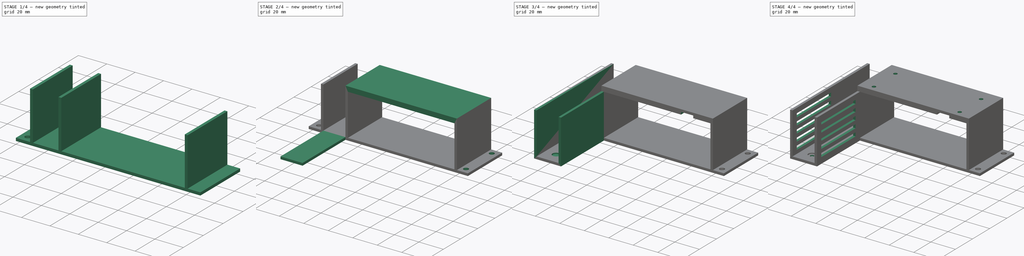
[diagram: build sequence overview — one tinted view per stage of 4, left to right]
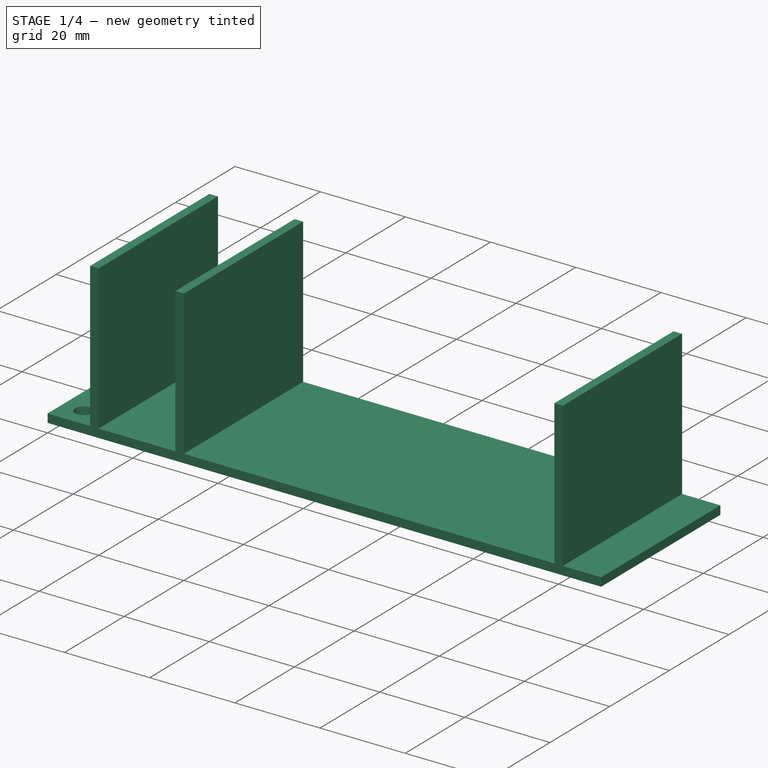
[diagram: stage 1 of 4 — iso view after this stage's code; geometry added in this stage tinted green]
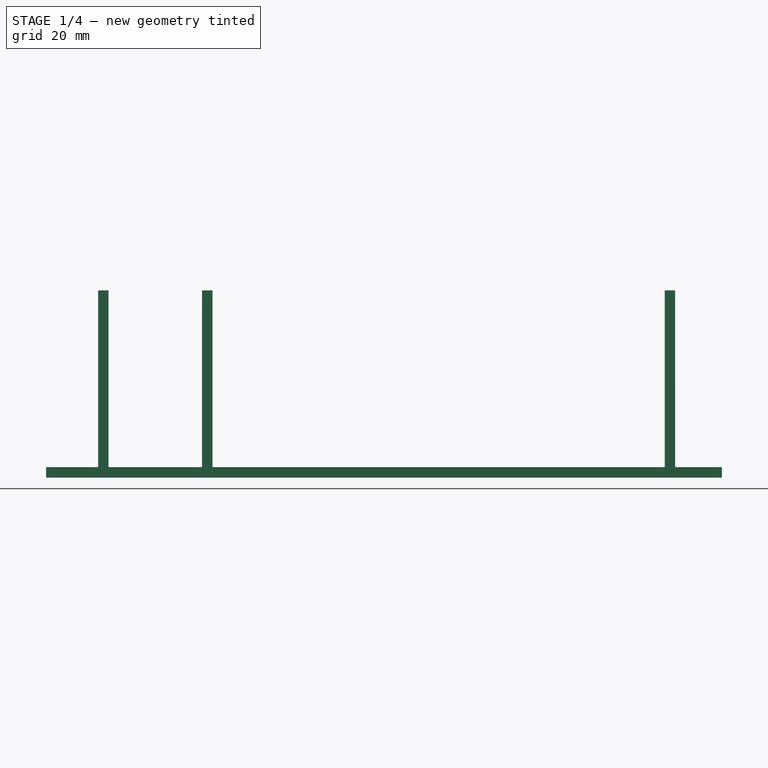
[diagram: stage 1 of 4 — front view after this stage's code; geometry added in this stage tinted green]
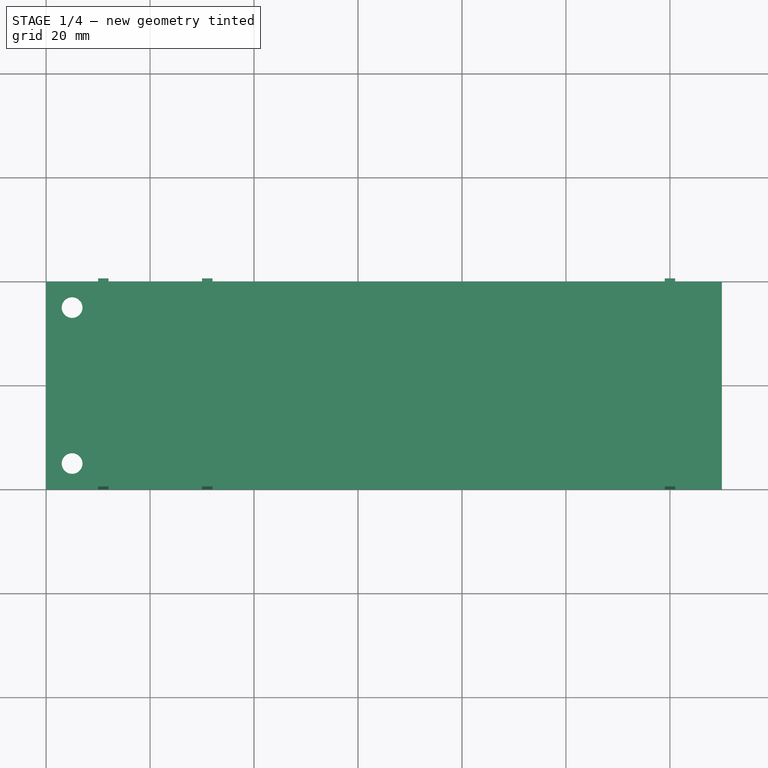
[diagram: stage 1 of 4 — top view after this stage's code; geometry added in this stage tinted green]
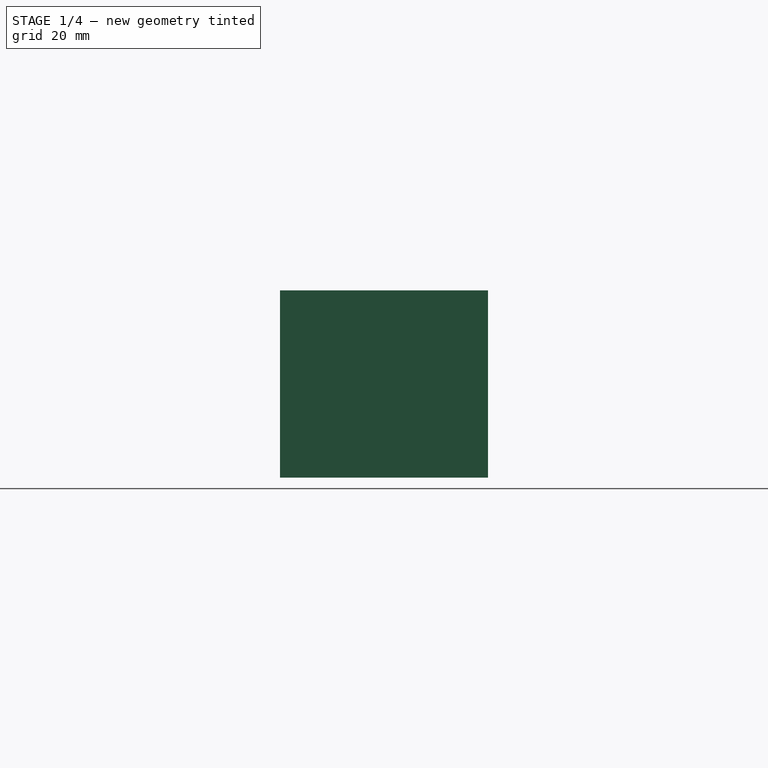
[diagram: stage 1 of 4 — right view after this stage's code; geometry added in this stage tinted green]
FCSTD DOCUMENT  (FreeCAD 0.16R6706 (Git))
Label: iROB-EA_SoporteBateriaPC
License: All rights reserved
LicenseURL: http://en.wikipedia.org/wiki/All_rights_reserved
objects: Sketcher::SketchObject×13, PartDesign::Pocket×7, PartDesign::Pad×6
note: 39 computed .brp shape members not serialized (recipe doc carries the construction recipe); baked Part::Feature solids carry a one-line shape summary decoded from their .brp

FEATURE [Sketcher::SketchObject] Sketch  label="Base"
  sketch-geometry (4):
    g0: LineSegment StartX=0 StartY=40 StartZ=0 EndX=130 EndY=40 EndZ=0
    g1: LineSegment StartX=130 StartY=40 StartZ=0 EndX=130 EndY=0 EndZ=0
    g2: LineSegment StartX=130 StartY=0 StartZ=0 EndX=0 EndY=0 EndZ=0
    g3: LineSegment StartX=0 StartY=0 StartZ=0 EndX=0 EndY=40 EndZ=0
  constraints (11):
    c: Coincident(g0,g1)
    c: Coincident(g1,g2)
    c: Coincident(g2,g3)
    c: Coincident(g3,g0)
    c: Horizontal(g0)
    c: Horizontal(g2)
    c: Vertical(g1)
    c: Vertical(g3)
    c: DistanceY(g3,g3) = 40
    c: DistanceX(g0,g0) = 130
    c: Coincident(g-1,g2)
FEATURE [PartDesign::Pad] Pad
  Length = 2
  Length2 = 100
  Sketch = -> Sketch
  Type = 0
FEATURE [Sketcher::SketchObject] Sketch001  label="Laterales"
  Placement = pos=(0,0,2) rot=(0,0,1;0rad)
  Support = -> Pad [Face6]
  sketch-geometry (12):
    g0: LineSegment StartX=10 StartY=40 StartZ=0 EndX=12 EndY=40 EndZ=0
    g1: LineSegment StartX=12 StartY=40 StartZ=0 EndX=12 EndY=0 EndZ=0
    g2: LineSegment StartX=12 StartY=0 StartZ=0 EndX=10 EndY=0 EndZ=0
    g3: LineSegment StartX=10 StartY=0 StartZ=0 EndX=10 EndY=40 EndZ=0
    g4: LineSegment StartX=32 StartY=40 StartZ=0 EndX=30 EndY=40 EndZ=0
    g5: LineSegment StartX=30 StartY=40 StartZ=0 EndX=30 EndY=0 EndZ=0
    g6: LineSegment StartX=30 StartY=0 StartZ=0 EndX=32 EndY=0 EndZ=0
    g7: LineSegment StartX=32 StartY=0 StartZ=0 EndX=32 EndY=40 EndZ=0
    g8: LineSegment StartX=121 StartY=40 StartZ=0 EndX=119 EndY=40 EndZ=0
    g9: LineSegment StartX=119 StartY=40 StartZ=0 EndX=119 EndY=0 EndZ=0
    g10: LineSegment StartX=119 StartY=0 StartZ=0 EndX=121 EndY=0 EndZ=0
    g11: LineSegment StartX=121 StartY=0 StartZ=0 EndX=121 EndY=40 EndZ=0
  constraints (33):
    c: Coincident(g0,g1)
    c: Coincident(g1,g2)
    c: Coincident(g2,g3)
    c: Coincident(g3,g0)
    c: Horizontal(g0)
    c: Horizontal(g2)
    c: Vertical(g1)
    c: Vertical(g3)
    c: DistanceX(g0,g0) = 2
    c: DistanceY(g1,g1) = 40
    c: DistanceX(g2,g-1) = -10
    c: Coincident(g4,g5)
    c: Coincident(g5,g6)
    c: Coincident(g6,g7)
    c: Coincident(g7,g4)
    c: Horizontal(g4)
    c: Horizontal(g6)
    c: Vertical(g5)
    c: Vertical(g7)
    c: DistanceX(g4,g4) = 2
    c: DistanceY(g7,g7) = 40
    c: DistanceX(g5,g1) = -18
    c: Coincident(g8,g9)
    c: Coincident(g9,g10)
    c: Coincident(g10,g11)
    c: Coincident(g11,g8)
    c: Horizontal(g8)
    c: Horizontal(g10)
    c: Vertical(g9)
    c: Vertical(g11)
    c: DistanceX(g8,g8) = 2
    c: DistanceY(g11,g11) = 40
    c: DistanceX(g9,g6) = -87
FEATURE [PartDesign::Pad] Pad001
  Length = 34
  Length2 = 100
  Sketch = -> Sketch001
  Type = 0
FEATURE [Sketcher::SketchObject] Sketch002  label="Tornillos_Base_Lado_A"
  Placement = pos=(0,0,2) rot=(0,0,1;0rad)
  Support = -> Pad001 [Face9]
  sketch-geometry (2):
    g0: Circle CenterX=5 CenterY=5 CenterZ=0 NormalX=0 NormalY=0 NormalZ=1 Radius=2
    g1: Circle CenterX=5 CenterY=35 CenterZ=0 NormalX=0 NormalY=0 NormalZ=1 Radius=2
  constraints (5):
    c: Radius(g0) = 2
    c: DistanceY(g-1,g0) = 5
    c: DistanceX(g0,g-1) = -5
    c: Radius(g1) = 2
    c: DistanceY(g0,g1) = 30
FEATURE [PartDesign::Pocket] Pocket
  Length = 2
  Sketch = -> Sketch002
  Type = 0
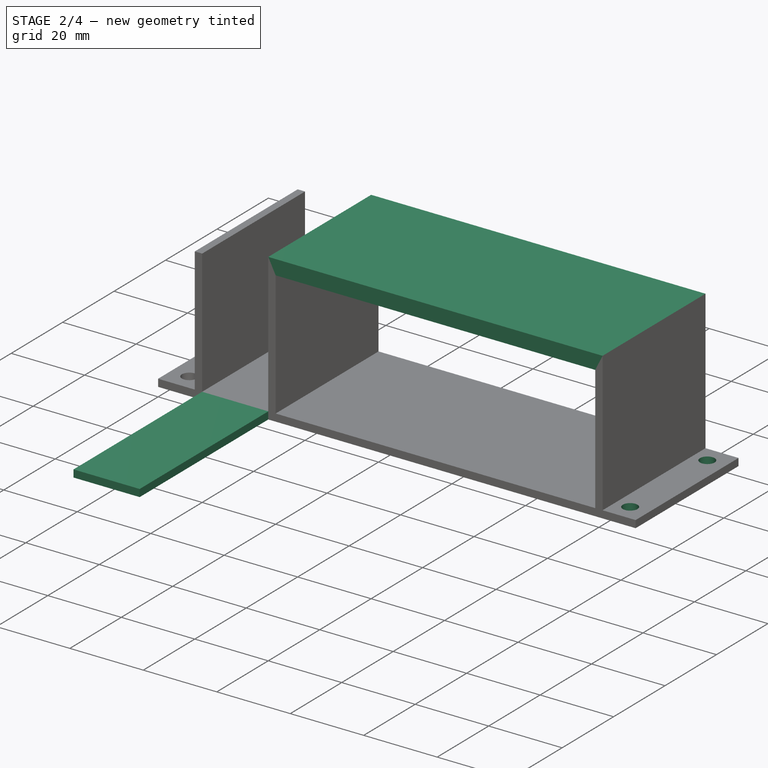
[diagram: stage 2 of 4 — iso view after this stage's code; geometry added in this stage tinted green]
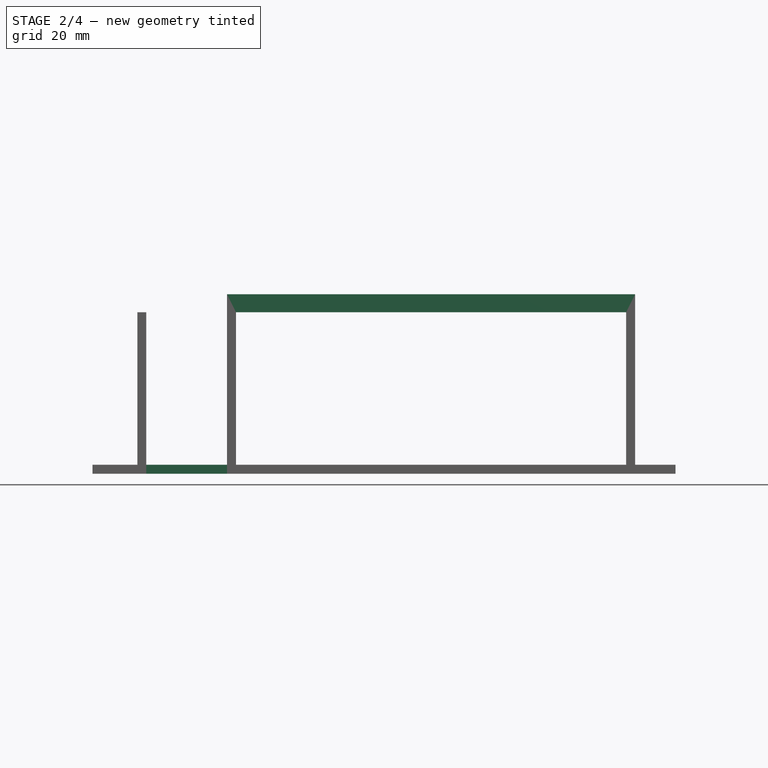
[diagram: stage 2 of 4 — front view after this stage's code; geometry added in this stage tinted green]
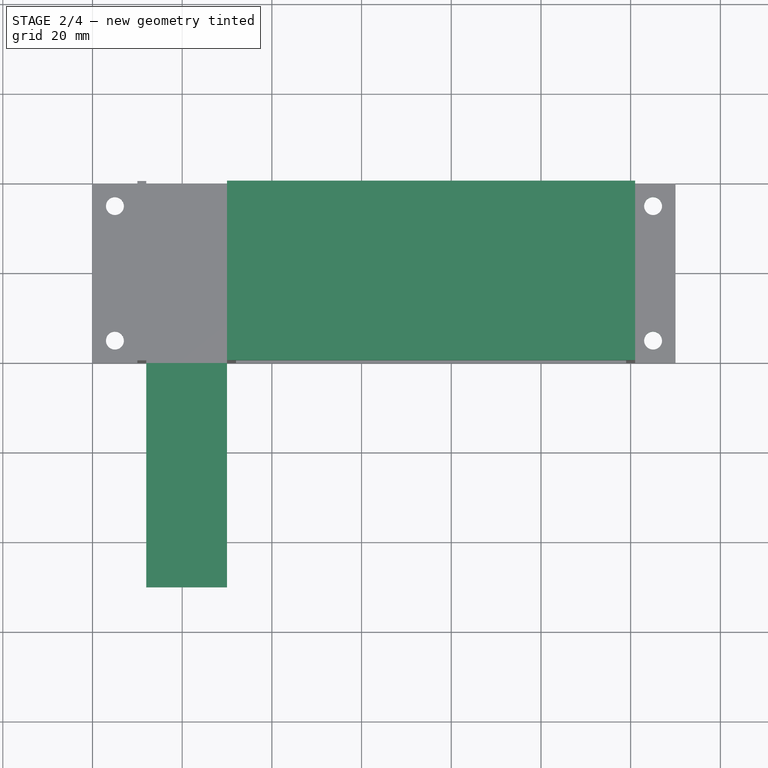
[diagram: stage 2 of 4 — top view after this stage's code; geometry added in this stage tinted green]
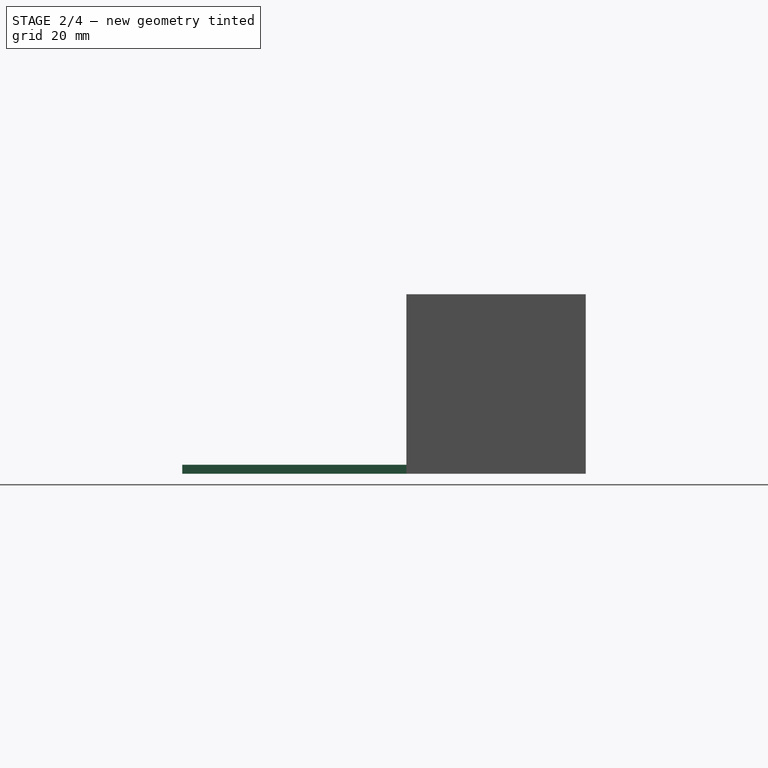
[diagram: stage 2 of 4 — right view after this stage's code; geometry added in this stage tinted green]
FEATURE [Sketcher::SketchObject] Sketch003  label="Tornillos_Base_Lado_B"
  Placement = pos=(0,0,2) rot=(0,0,1;0rad)
  Support = -> Pocket [Face16]
  sketch-geometry (2):
    g0: Circle CenterX=125 CenterY=5 CenterZ=0 NormalX=0 NormalY=0 NormalZ=1 Radius=2
    g1: Circle CenterX=125 CenterY=35 CenterZ=0 NormalX=0 NormalY=0 NormalZ=1 Radius=2
  constraints (5):
    c: Radius(g0) = 2
    c: DistanceX(g0,g-1) = -125
    c: DistanceY(g-1,g0) = 5
    c: Radius(g1) = 2
    c: DistanceY(g0,g1) = 30
FEATURE [PartDesign::Pocket] Pocket001
  Length = 2
  Sketch = -> Sketch003
  Type = 0
FEATURE [Sketcher::SketchObject] Sketch004  label="Tapa_Superior"
  Placement = pos=(0,0,36) rot=(0,0,1;0rad)
  Support = -> Pocket001 [Face10]
  sketch-geometry (4):
    g0: LineSegment StartX=30 StartY=40 StartZ=0 EndX=121 EndY=40 EndZ=0
    g1: LineSegment StartX=121 StartY=40 StartZ=0 EndX=121 EndY=0 EndZ=0
    g2: LineSegment StartX=121 StartY=0 StartZ=0 EndX=30 EndY=0 EndZ=0
    g3: LineSegment StartX=30 StartY=0 StartZ=0 EndX=30 EndY=40 EndZ=0
  constraints (11):
    c: Coincident(g0,g1)
    c: Coincident(g1,g2)
    c: Coincident(g2,g3)
    c: Coincident(g3,g0)
    c: Horizontal(g0)
    c: Horizontal(g2)
    c: Vertical(g1)
    c: Vertical(g3)
    c: DistanceY(g3,g3) = 40
    c: DistanceX(g0,g0) = 91
    c: DistanceX(g-1,g2) = 30
FEATURE [PartDesign::Pad] Pad002
  Length = 4
  Length2 = 100
  Sketch = -> Sketch004
  Type = 0
FEATURE [Sketcher::SketchObject] Sketch005  label="Base_PC"
  Placement = pos=(0,0,0) rot=(1,0,0;1.5708rad)
  Support = -> Pad002 [Face21]
  sketch-geometry (4):
    g0: LineSegment StartX=12 StartY=2 StartZ=0 EndX=30 EndY=2 EndZ=0
    g1: LineSegment StartX=30 StartY=2 StartZ=0 EndX=30 EndY=0 EndZ=0
    g2: LineSegment StartX=30 StartY=0 StartZ=0 EndX=12 EndY=0 EndZ=0
    g3: LineSegment StartX=12 StartY=0 StartZ=0 EndX=12 EndY=2 EndZ=0
  constraints (11):
    c: Coincident(g0,g1)
    c: Coincident(g1,g2)
    c: Coincident(g2,g3)
    c: Coincident(g3,g0)
    c: Horizontal(g0)
    c: Horizontal(g2)
    c: Vertical(g1)
    c: Vertical(g3)
    c: DistanceY(g1,g1) = 2
    c: DistanceX(g0,g0) = 18
    c: DistanceX(g2,g-1) = -12
FEATURE [PartDesign::Pad] Pad003
  Length = 50
  Length2 = 100
  Sketch = -> Sketch005
  Type = 0
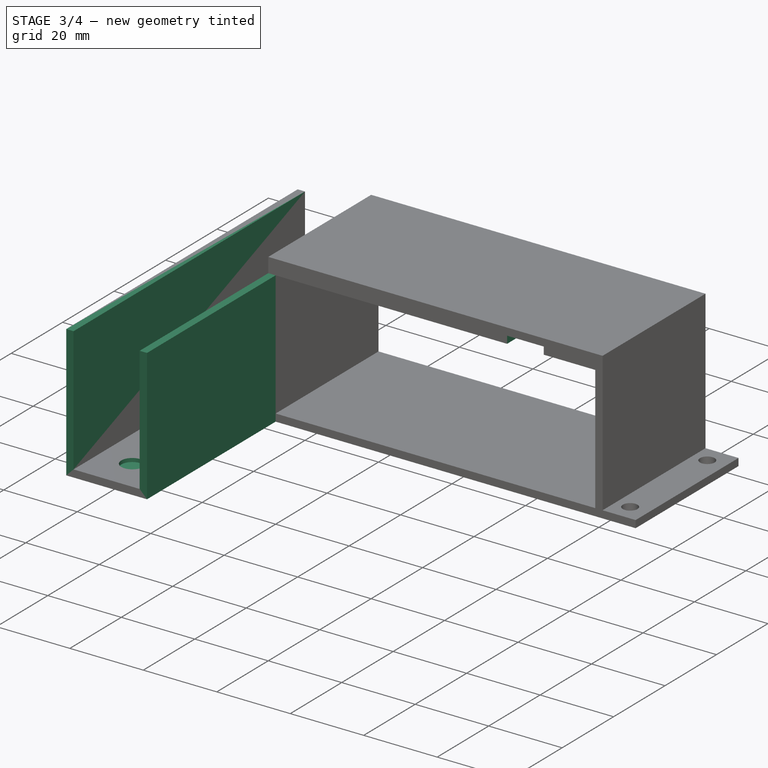
[diagram: stage 3 of 4 — iso view after this stage's code; geometry added in this stage tinted green]
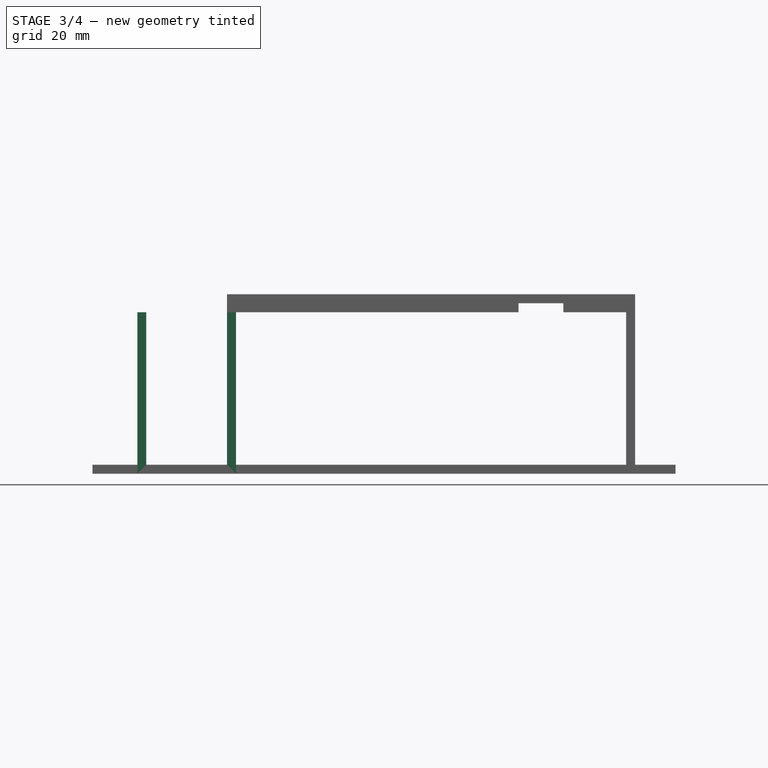
[diagram: stage 3 of 4 — front view after this stage's code; geometry added in this stage tinted green]
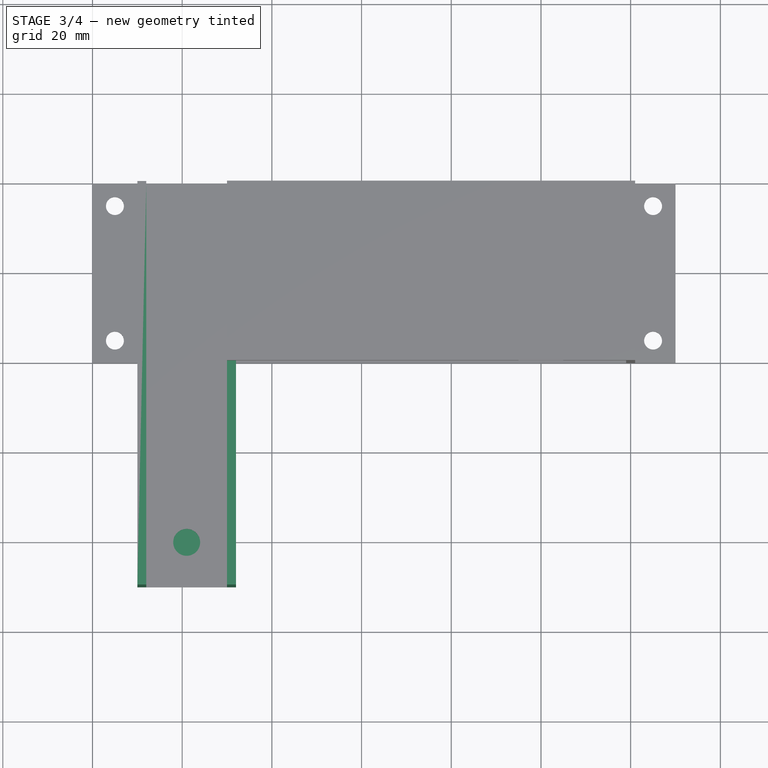
[diagram: stage 3 of 4 — top view after this stage's code; geometry added in this stage tinted green]
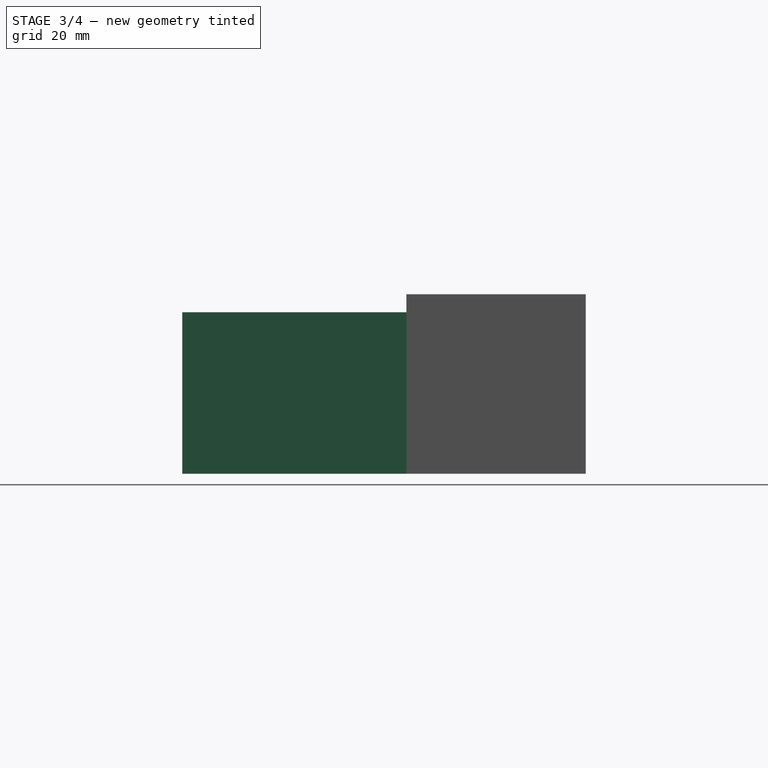
[diagram: stage 3 of 4 — right view after this stage's code; geometry added in this stage tinted green]
FEATURE [Sketcher::SketchObject] Sketch006  label="Lateral_PC_A"
  Placement = pos=(0,0,0) rot=(1,0,0;1.5708rad)
  Support = -> Pad003 [Face16]
  sketch-geometry (4):
    g0: LineSegment StartX=12 StartY=36 StartZ=0 EndX=10 EndY=36 EndZ=0
    g1: LineSegment StartX=10 StartY=36 StartZ=0 EndX=10 EndY=0 EndZ=0
    g2: LineSegment StartX=10 StartY=0 StartZ=0 EndX=12 EndY=0 EndZ=0
    g3: LineSegment StartX=12 StartY=0 StartZ=0 EndX=12 EndY=36 EndZ=0
  constraints (11):
    c: Coincident(g0,g1)
    c: Coincident(g1,g2)
    c: Coincident(g2,g3)
    c: Coincident(g3,g0)
    c: Horizontal(g0)
    c: Horizontal(g2)
    c: Vertical(g1)
    c: Vertical(g3)
    c: DistanceX(g0,g0) = 2
    c: DistanceY(g3,g3) = 36
    c: DistanceX(g1,g-1) = -10
FEATURE [PartDesign::Pad] Pad004
  Length = 50
  Length2 = 100
  Sketch = -> Sketch006
  Type = 0
FEATURE [Sketcher::SketchObject] Sketch007  label="Lateral_PC_B"
  Placement = pos=(0,0,0) rot=(1,0,0;1.5708rad)
  Support = -> Pad004 [Face18]
  sketch-geometry (4):
    g0: LineSegment StartX=32 StartY=36 StartZ=0 EndX=30 EndY=36 EndZ=0
    g1: LineSegment StartX=30 StartY=36 StartZ=0 EndX=30 EndY=0 EndZ=0
    g2: LineSegment StartX=30 StartY=0 StartZ=0 EndX=32 EndY=0 EndZ=0
    g3: LineSegment StartX=32 StartY=0 StartZ=0 EndX=32 EndY=36 EndZ=0
  constraints (11):
    c: Coincident(g0,g1)
    c: Coincident(g1,g2)
    c: Coincident(g2,g3)
    c: Coincident(g3,g0)
    c: Horizontal(g0)
    c: Horizontal(g2)
    c: Vertical(g1)
    c: Vertical(g3)
    c: DistanceX(g0,g0) = 2
    c: DistanceY(g1,g1) = 36
    c: DistanceX(g1,g-1) = -30
FEATURE [PartDesign::Pad] Pad005
  Length = 50
  Length2 = 100
  Sketch = -> Sketch007
  Type = 0
FEATURE [Sketcher::SketchObject] Sketch008  label="Tornillo_Delantero_Cabeza"
  Placement = pos=(0,0,2) rot=(0,0,1;0rad)
  Support = -> Pad005 [Face7]
  sketch-geometry (1):
    g0: Circle CenterX=21 CenterY=-40 CenterZ=0 NormalX=0 NormalY=0 NormalZ=1 Radius=3
  constraints (3):
    c: Radius(g0) = 3
    c: DistanceX(g0,g-1) = -21
    c: DistanceY(g-1,g0) = -40
FEATURE [PartDesign::Pocket] Pocket002
  Length = 1
  Sketch = -> Sketch008
  Type = 0
FEATURE [Sketcher::SketchObject] Sketch009  label="Tornillos_Superiores_Cabeza"
  Placement = pos=(0,0,36) rot=(1,0,0;3.14159rad)
  Support = -> Pocket002 [Face16]
  sketch-geometry (8):
    g0: Circle CenterX=40 CenterY=-5 CenterZ=0 NormalX=0 NormalY=0 NormalZ=1 Radius=3
    g1: Circle CenterX=40 CenterY=-30 CenterZ=0 NormalX=0 NormalY=0 NormalZ=1 Radius=3
    g2: Circle CenterX=110 CenterY=-30 CenterZ=0 NormalX=0 NormalY=0 NormalZ=1 Radius=3
    g3: Circle CenterX=110 CenterY=-5 CenterZ=0 NormalX=0 NormalY=0 NormalZ=1 Radius=3
    g4: LineSegment StartX=95 StartY=0 StartZ=0 EndX=105 EndY=0 EndZ=0
    g5: LineSegment StartX=105 StartY=0 StartZ=0 EndX=105 EndY=-40 EndZ=0
    g6: LineSegment StartX=105 StartY=-40 StartZ=0 EndX=95 EndY=-40 EndZ=0
    g7: LineSegment StartX=95 StartY=-40 StartZ=0 EndX=95 EndY=0 EndZ=0
  constraints (23):
    c: Radius(g0) = 3
    c: DistanceY(g-1,g0) = -5
    c: DistanceX(g0,g-1) = -40
    c: Radius(g1) = 3
    c: DistanceY(g-1,g1) = -30
    c: DistanceX(g1,g-1) = -40
    c: Radius(g2) = 3
    c: Radius(g3) = 3
    c: DistanceX(g-1,g3) = 110
    c: DistanceY(g-1,g3) = -5
    c: DistanceY(g1,g2) = 0
    c: Coincident(g4,g5)
    c: Coincident(g5,g6)
    c: Coincident(g6,g7)
    c: Coincident(g7,g4)
    c: Horizontal(g4)
    c: Horizontal(g6)
    c: Vertical(g5)
    c: Vertical(g7)
    c: DistanceX(g4,g4) = 10
    c: DistanceY(g5,g5) = 40
    c: DistanceY(g-1,g4) = 0
    c: DistanceX(g-1,g4) = 95
FEATURE [PartDesign::Pocket] Pocket003
  Length = 2
  Sketch = -> Sketch009
  Type = 0
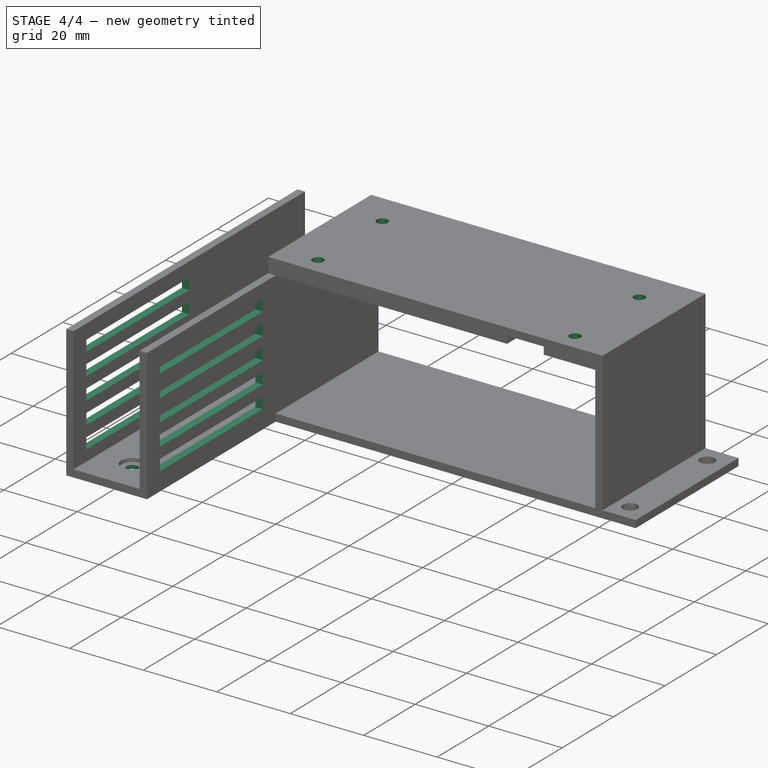
[diagram: stage 4 of 4 — iso view after this stage's code; geometry added in this stage tinted green]
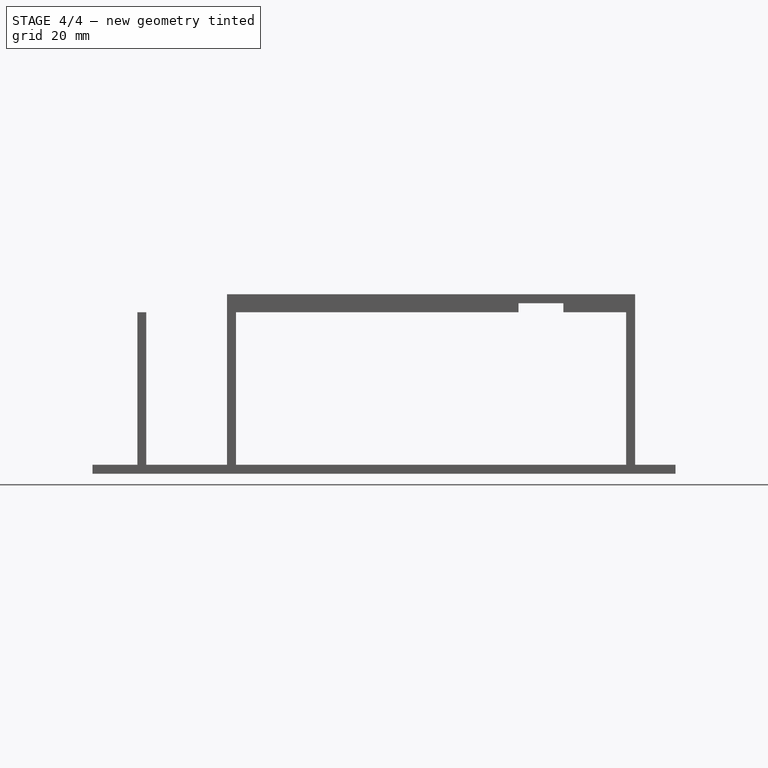
[diagram: stage 4 of 4 — front view after this stage's code; geometry added in this stage tinted green]
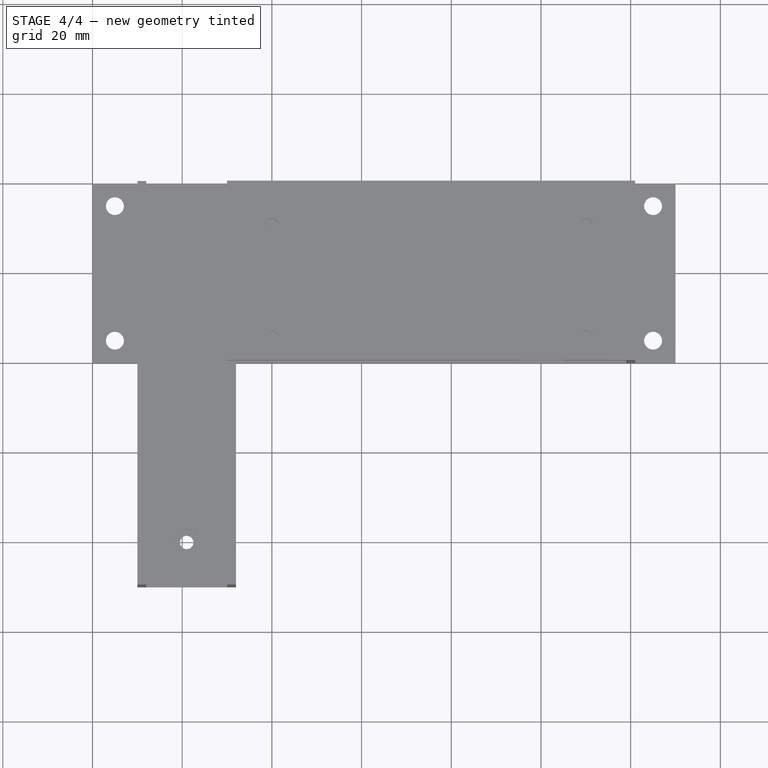
[diagram: stage 4 of 4 — top view after this stage's code; geometry added in this stage tinted green]
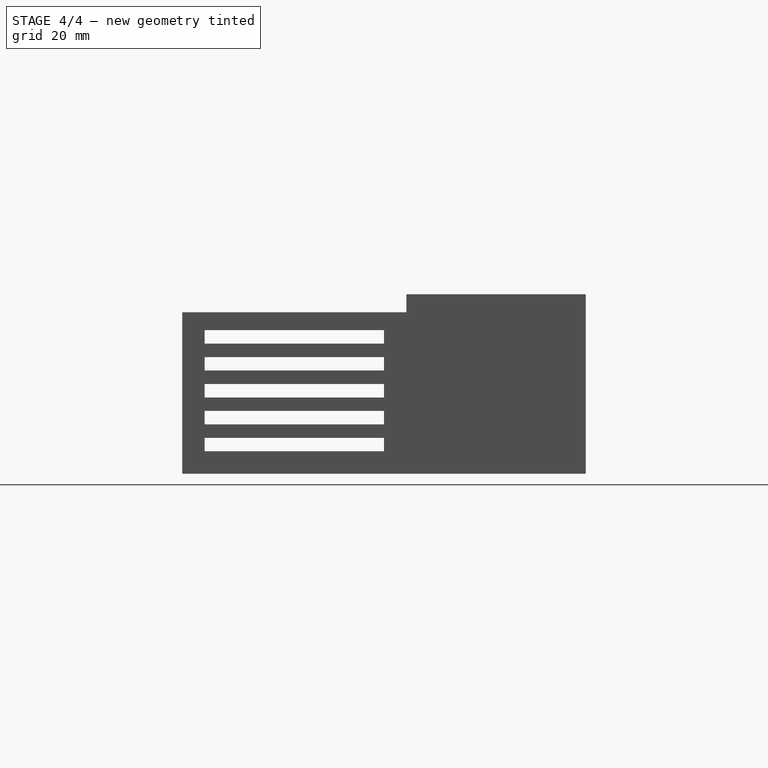
[diagram: stage 4 of 4 — right view after this stage's code; geometry added in this stage tinted green]
FEATURE [Sketcher::SketchObject] Sketch010  label="Tornillos_Superiores_Cuerpo"
  Placement = pos=(0,0,40) rot=(0,0,1;0rad)
  Support = -> Pocket003 [Face11]
  sketch-geometry (4):
    g0: Circle CenterX=40 CenterY=5 CenterZ=0 NormalX=0 NormalY=0 NormalZ=1 Radius=1.5
    g1: Circle CenterX=40 CenterY=30 CenterZ=0 NormalX=0 NormalY=0 NormalZ=1 Radius=1.5
    g2: Circle CenterX=110 CenterY=30 CenterZ=0 NormalX=0 NormalY=0 NormalZ=1 Radius=1.5
    g3: Circle CenterX=110 CenterY=5 CenterZ=0 NormalX=0 NormalY=0 NormalZ=1 Radius=1.5
  constraints (10):
    c: Radius(g0) = 1.5
    c: DistanceY(g-1,g0) = 5
    c: DistanceX(g0,g-1) = -40
    c: Radius(g1) = 1.5
    c: DistanceX(g1,g-1) = -40
    c: DistanceY(g-1,g1) = 30
    c: Radius(g2) = 1.5
    c: Radius(g3) = 1.5
    c: DistanceY(g1,g2) = 0
    c: DistanceX(g-1,g2) = 110
FEATURE [PartDesign::Pocket] Pocket004
  Length = 5
  Sketch = -> Sketch010
  Type = 0
FEATURE [Sketcher::SketchObject] Sketch011  label="Ranuras_Ventilacion"
  Placement = pos=(10,0,0) rot=(0.57735,-0.57735,-0.57735;2.0944rad)
  Support = -> Pocket004 [Face6]
  sketch-geometry (20):
    g0: LineSegment StartX=5 StartY=8 StartZ=0 EndX=45 EndY=8 EndZ=0
    g1: LineSegment StartX=45 StartY=8 StartZ=0 EndX=45 EndY=5 EndZ=0
    g2: LineSegment StartX=45 StartY=5 StartZ=0 EndX=5 EndY=5 EndZ=0
    g3: LineSegment StartX=5 StartY=5 StartZ=0 EndX=5 EndY=8 EndZ=0
    g4: LineSegment StartX=5 StartY=14 StartZ=0 EndX=45 EndY=14 EndZ=0
    g5: LineSegment StartX=45 StartY=14 StartZ=0 EndX=45 EndY=11 EndZ=0
    g6: LineSegment StartX=45 StartY=11 StartZ=0 EndX=5 EndY=11 EndZ=0
    g7: LineSegment StartX=5 StartY=11 StartZ=0 EndX=5 EndY=14 EndZ=0
    g8: LineSegment StartX=5 StartY=20 StartZ=0 EndX=45 EndY=20 EndZ=0
    g9: LineSegment StartX=45 StartY=20 StartZ=0 EndX=45 EndY=17 EndZ=0
    g10: LineSegment StartX=45 StartY=17 StartZ=0 EndX=5 EndY=17 EndZ=0
    g11: LineSegment StartX=5 StartY=17 StartZ=0 EndX=5 EndY=20 EndZ=0
    g12: LineSegment StartX=5 StartY=26 StartZ=0 EndX=45 EndY=26 EndZ=0
    g13: LineSegment StartX=45 StartY=26 StartZ=0 EndX=45 EndY=23 EndZ=0
    g14: LineSegment StartX=45 StartY=23 StartZ=0 EndX=5 EndY=23 EndZ=0
    g15: LineSegment StartX=5 StartY=23 StartZ=0 EndX=5 EndY=26 EndZ=0
    g16: LineSegment StartX=5 StartY=32 StartZ=0 EndX=45 EndY=32 EndZ=0
    g17: LineSegment StartX=45 StartY=32 StartZ=0 EndX=45 EndY=29 EndZ=0
    g18: LineSegment StartX=45 StartY=29 StartZ=0 EndX=5 EndY=29 EndZ=0
    g19: LineSegment StartX=5 StartY=29 StartZ=0 EndX=5 EndY=32 EndZ=0
  constraints (60):
    c: Coincident(g0,g1)
    c: Coincident(g1,g2)
    c: Coincident(g2,g3)
    c: Coincident(g3,g0)
    c: Horizontal(g0)
    c: Horizontal(g2)
    c: Vertical(g1)
    c: Vertical(g3)
    c: DistanceY(g1,g1) = 3
    c: DistanceX(g0,g0) = 40
    c: DistanceY(g-1,g2) = 5
    c: DistanceX(g2,g-1) = -5
    c: Coincident(g4,g5)
    c: Coincident(g5,g6)
    c: Coincident(g6,g7)
    c: Coincident(g7,g4)
    c: Horizontal(g4)
    c: Horizontal(g6)
    c: Vertical(g5)
    c: Vertical(g7)
    c: DistanceY(g5,g5) = 3
    c: DistanceX(g4,g4) = 40
    c: DistanceX(g6,g0) = 0
    c: DistanceY(g0,g6) = 3
    c: Coincident(g8,g9)
    c: Coincident(g9,g10)
    c: Coincident(g10,g11)
    c: Coincident(g11,g8)
    c: Horizontal(g8)
    c: Horizontal(g10)
    c: Vertical(g9)
    c: Vertical(g11)
    c: DistanceY(g9,g9) = 3
    c: DistanceX(g8,g8) = 40
    c: DistanceX(g10,g4) = 0
    c: DistanceY(g4,g10) = 3
    c: Coincident(g12,g13)
    c: Coincident(g13,g14)
    c: Coincident(g14,g15)
    c: Coincident(g15,g12)
    c: Horizontal(g12)
    c: Horizontal(g14)
    c: Vertical(g13)
    c: Vertical(g15)
    c: DistanceY(g13,g13) = 3
    c: DistanceX(g12,g12) = 40
    c: DistanceX(g14,g8) = 0
    c: DistanceY(g8,g14) = 3
    c: Coincident(g16,g17)
    c: Coincident(g17,g18)
    c: Coincident(g18,g19)
    c: Coincident(g19,g16)
    c: Horizontal(g16)
    c: Horizontal(g18)
    c: Vertical(g17)
    c: Vertical(g19)
    c: DistanceY(g17,g17) = 3
    c: DistanceX(g16,g16) = 40
    c: DistanceX(g18,g12) = 0
    c: DistanceY(g12,g18) = 3
FEATURE [PartDesign::Pocket] Pocket005
  Length = 40
  Sketch = -> Sketch011
  Type = 0
FEATURE [Sketcher::SketchObject] Sketch012  label="Tornillo_Delantero_Cuerpo"
  Placement = pos=(0,0,0) rot=(1,0,0;3.14159rad)
  Support = -> Pocket005 [Face3]
  sketch-geometry (1):
    g0: Circle CenterX=21 CenterY=40 CenterZ=0 NormalX=0 NormalY=0 NormalZ=1 Radius=1.5
  constraints (3):
    c: Radius(g0) = 1.5
    c: DistanceX(g0,g-1) = -21
    c: DistanceY(g-1,g0) = 40
FEATURE [PartDesign::Pocket] Pocket006
  Length = 1
  Sketch = -> Sketch012
  Type = 0
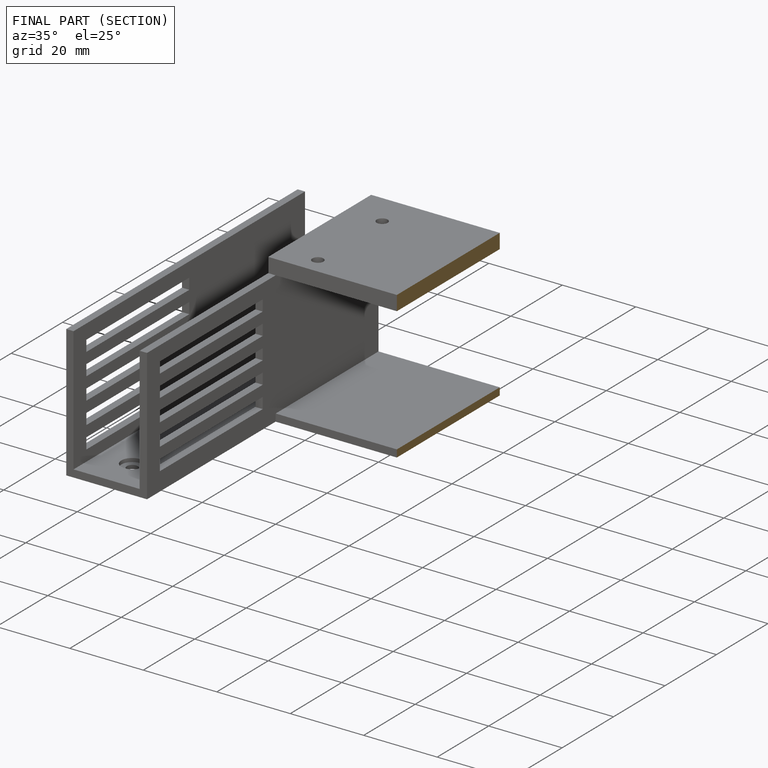
[diagram: finished part — half-section view (interior)]
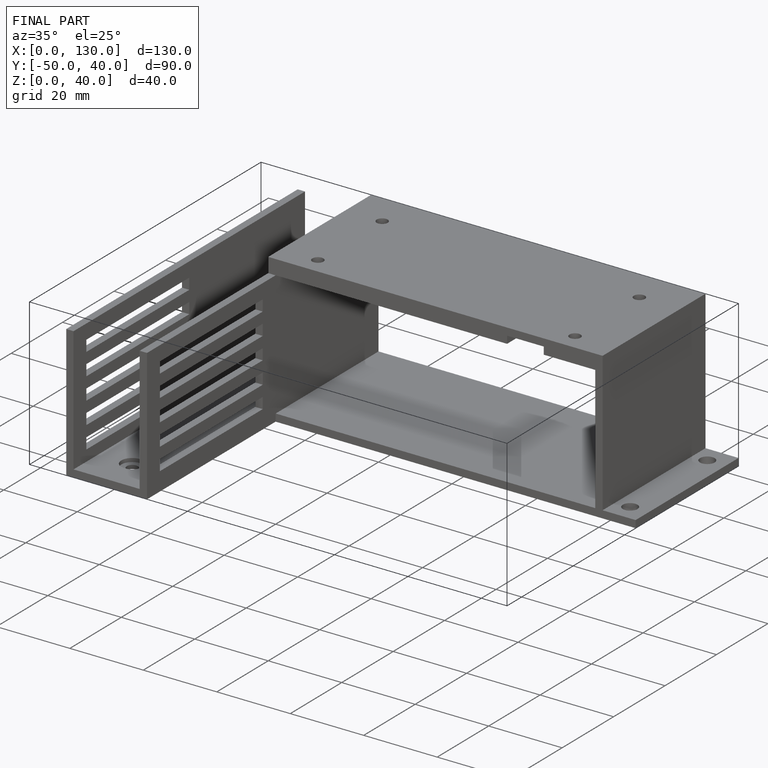
[diagram: finished part — iso view with bounding-box wireframe]
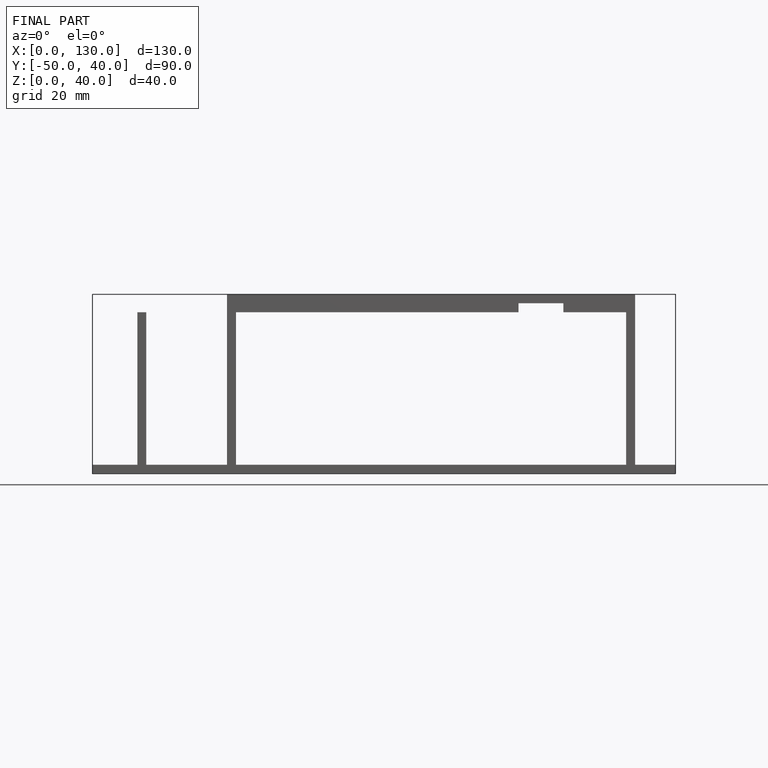
[diagram: finished part — front view with bounding-box wireframe]
